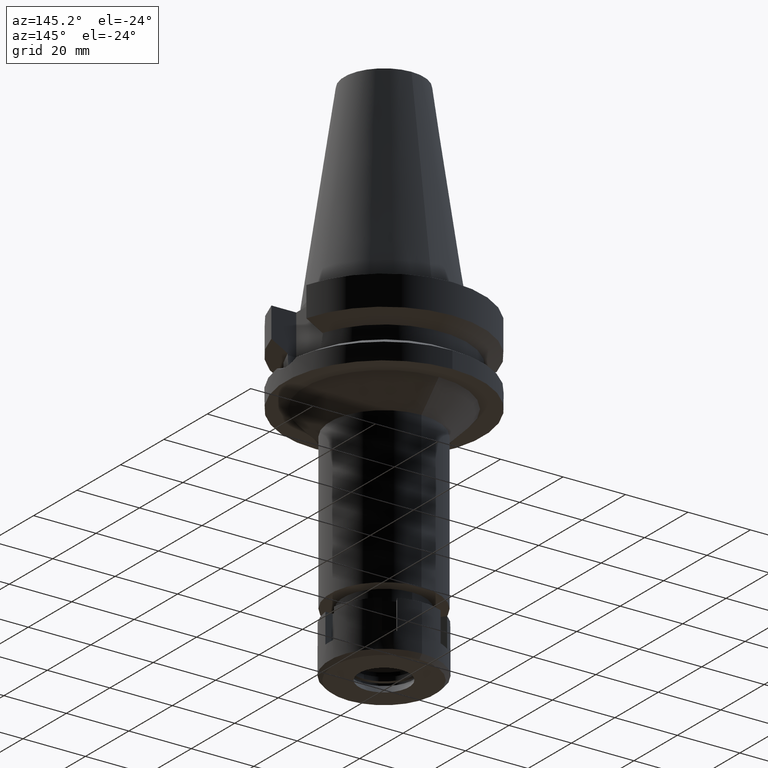
[diagram: clean part render]
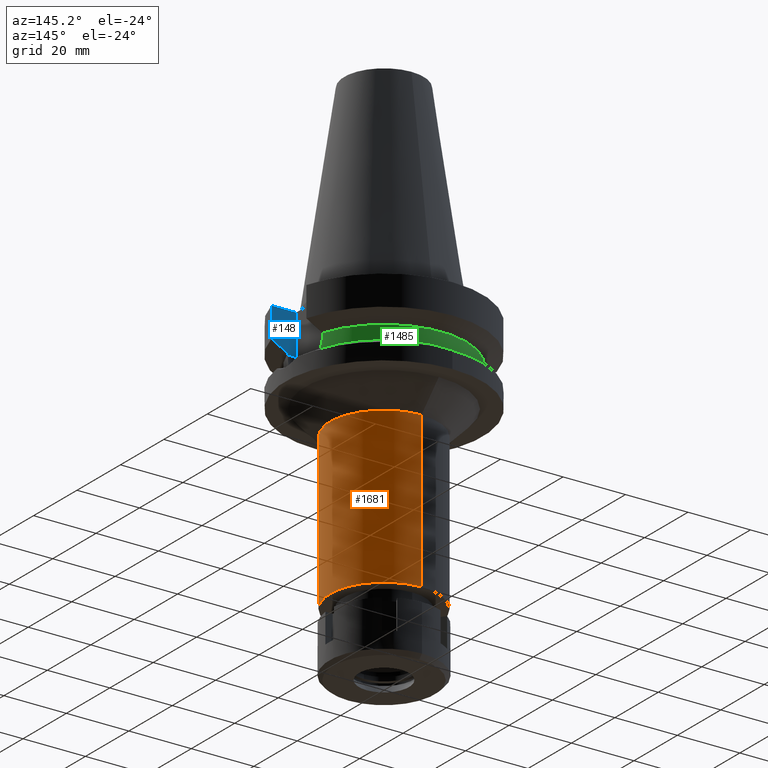
[diagram: same view with three faces highlighted in distinct colors, each labeled with its STEP entity id]
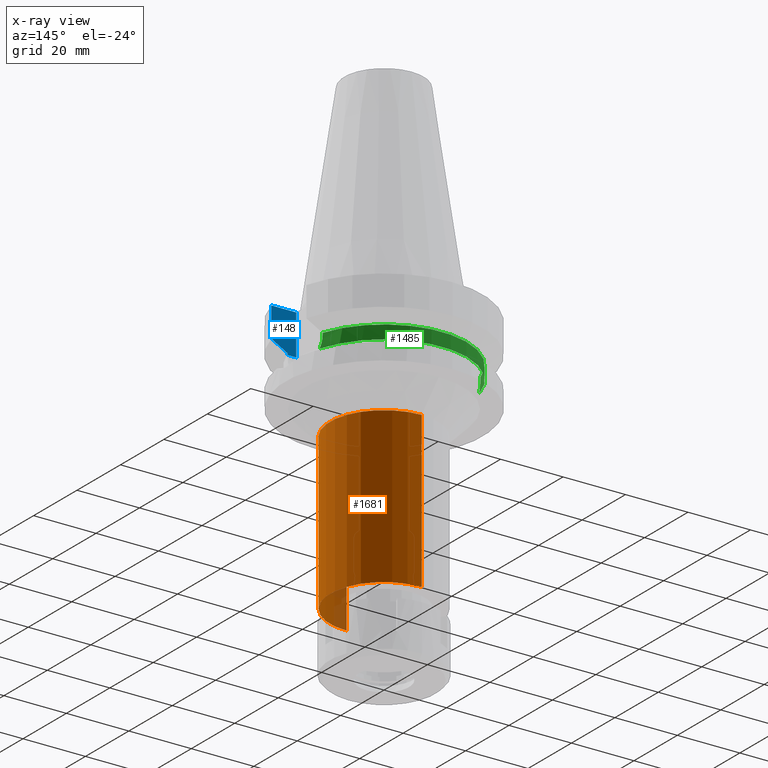
[diagram: x-ray of the same camera — body ghosted, the three highlighted faces saturated]
A machine part, auxiliary view with three faces highlighted in distinct colors.
The next image is the same camera in x-ray (body ghosted, the three faces saturated) — at least one of them is partly hidden behind the body in this view.
Their STEP definitions:

[orange] entity #1681 — the highlighted cylindrical surface (partial cylindrical patch) has radius 17.25 mm, axis along (0, 0, -1).
#175 = CARTESIAN_POINT ( 'NONE',  ( 0.0000000000000000000, 0.0000000000000000000, -35.00000000000000000 ) ) ;
#302 = ORIENTED_EDGE ( 'NONE', *, *, #1416, .T. ) ;
#401 = EDGE_LOOP ( 'NONE', ( #302, #871, #2803, #2787 ) ) ;
#487 = DIRECTION ( 'NONE',  ( 0.0000000000000000000, 0.0000000000000000000, -1.000000000000000000 ) ) ;
#592 = AXIS2_PLACEMENT_3D ( 'NONE', #2692, #2712, #2444 ) ;
#754 = AXIS2_PLACEMENT_3D ( 'NONE', #175, #2431, #3563 ) ;
#766 = CARTESIAN_POINT ( 'NONE',  ( 0.0000000000000000000, 17.25000000000000000, -35.00000000000000000 ) ) ;
#768 = VECTOR ( 'NONE', #487, 1000.000000000000000 ) ;
#871 = ORIENTED_EDGE ( 'NONE', *, *, #1526, .T. ) ;
#950 = CARTESIAN_POINT ( 'NONE',  ( 0.0000000000000000000, 2.125007125879999817E-14, 73.51999999999999602 ) ) ;
#996 = CARTESIAN_POINT ( 'NONE',  ( 0.0000000000000000000, -17.25000000000000000, -84.50000000000000000 ) ) ;
#1357 = VERTEX_POINT ( 'NONE', #3307 ) ;
#1416 = EDGE_CURVE ( 'NONE', #2966, #1357, #1810, .T. ) ;
#1526 = EDGE_CURVE ( 'NONE', #1357, #3146, #3643, .T. ) ;
#1602 = LINE ( 'NONE', #766, #768 ) ;
#1681 = ADVANCED_FACE ( 'NONE', ( #2111 ), #2936, .T. ) ;
#1810 = CIRCLE ( 'NONE', #754, 17.25000000000000000 ) ;
#2111 = FACE_OUTER_BOUND ( 'NONE', #401, .T. ) ;
#2131 = CARTESIAN_POINT ( 'NONE',  ( 0.0000000000000000000, 17.25000000000000000, -84.50000000000000000 ) ) ;
#2431 = DIRECTION ( 'NONE',  ( 0.0000000000000000000, 0.0000000000000000000, -1.000000000000000000 ) ) ;
#2444 = DIRECTION ( 'NONE',  ( 0.0000000000000000000, -1.000000000000000000, 0.0000000000000000000 ) ) ;
#2549 = CARTESIAN_POINT ( 'NONE',  ( 0.0000000000000000000, -17.25000000000000000, -35.00000000000000000 ) ) ;
#2575 = CARTESIAN_POINT ( 'NONE',  ( 0.0000000000000000000, 17.25000000000000000, -35.00000000000000000 ) ) ;
#2599 = CIRCLE ( 'NONE', #592, 17.25000000000000000 ) ;
#2672 = EDGE_CURVE ( 'NONE', #3146, #3498, #2599, .T. ) ;
#2692 = CARTESIAN_POINT ( 'NONE',  ( 0.0000000000000000000, 2.125007125879999817E-14, -84.50000000000000000 ) ) ;
#2712 = DIRECTION ( 'NONE',  ( 0.0000000000000000000, 0.0000000000000000000, 1.000000000000000000 ) ) ;
#2787 = ORIENTED_EDGE ( 'NONE', *, *, #3278, .F. ) ;
#2803 = ORIENTED_EDGE ( 'NONE', *, *, #2672, .T. ) ;
#2821 = DIRECTION ( 'NONE',  ( 0.0000000000000000000, 0.0000000000000000000, -1.000000000000000000 ) ) ;
#2936 = CYLINDRICAL_SURFACE ( 'NONE', #3188, 17.25000000000000000 ) ;
#2966 = VERTEX_POINT ( 'NONE', #2575 ) ;
#2972 = DIRECTION ( 'NONE',  ( 0.0000000000000000000, -1.000000000000000000, 0.0000000000000000000 ) ) ;
#3146 = VERTEX_POINT ( 'NONE', #996 ) ;
#3185 = VECTOR ( 'NONE', #2821, 1000.000000000000000 ) ;
#3188 = AXIS2_PLACEMENT_3D ( 'NONE', #950, #3251, #2972 ) ;
#3251 = DIRECTION ( 'NONE',  ( 0.0000000000000000000, 0.0000000000000000000, -1.000000000000000000 ) ) ;
#3278 = EDGE_CURVE ( 'NONE', #2966, #3498, #1602, .T. ) ;
#3307 = CARTESIAN_POINT ( 'NONE',  ( 0.0000000000000000000, -17.25000000000000000, -35.00000000000000000 ) ) ;
#3498 = VERTEX_POINT ( 'NONE', #2131 ) ;
#3563 = DIRECTION ( 'NONE',  ( 0.0000000000000000000, 1.000000000000000000, 0.0000000000000000000 ) ) ;
#3643 = LINE ( 'NONE', #2549, #3185 ) ;

[blue] entity #148 — the highlighted planar face has unit normal (0, -1, 0).
#2 = PLANE ( 'NONE',  #272 ) ;
#43 = VECTOR ( 'NONE', #1065, 1000.000000000000000 ) ;
#134 = EDGE_CURVE ( 'NONE', #2728, #655, #675, .T. ) ;
#148 = ADVANCED_FACE ( 'NONE', ( #319 ), #2, .F. ) ;
#212 = CARTESIAN_POINT ( 'NONE',  ( 30.45402272279000044, -8.049999999999000622, -11.56550565266999975 ) ) ;
#272 = AXIS2_PLACEMENT_3D ( 'NONE', #549, #1384, #1134 ) ;
#319 = FACE_OUTER_BOUND ( 'NONE', #2793, .T. ) ;
#490 = CARTESIAN_POINT ( 'NONE',  ( 25.24772266958000344, -8.050000000000000711, -14.94999999999999929 ) ) ;
#525 = VERTEX_POINT ( 'NONE', #3189 ) ;
#534 = CARTESIAN_POINT ( 'NONE',  ( 25.24772216419000159, -8.050001585077000144, -14.45224488722999823 ) ) ;
#549 = CARTESIAN_POINT ( 'NONE',  ( 22.50000000000000000, -8.050000000000000711, -2.000000000000000000 ) ) ;
#575 = VECTOR ( 'NONE', #750, 1000.000000000000114 ) ;
#606 = CARTESIAN_POINT ( 'NONE',  ( 25.24772266958000344, -8.050000000000000711, -14.94999999999999929 ) ) ;
#611 = ORIENTED_EDGE ( 'NONE', *, *, #3473, .T. ) ;
#625 = ORIENTED_EDGE ( 'NONE', *, *, #134, .T. ) ;
#655 = VERTEX_POINT ( 'NONE', #967 ) ;
#675 = LINE ( 'NONE', #606, #2878 ) ;
#721 = CARTESIAN_POINT ( 'NONE',  ( 22.50000000000000000, -8.050000000000000711, -2.000000000000000000 ) ) ;
#750 = DIRECTION ( 'NONE',  ( 1.015331671897014297E-06, 3.184450582670045682E-06, -0.9999999999944141349 ) ) ;
#886 = VECTOR ( 'NONE', #2156, 1000.000000000000114 ) ;
#913 = DIRECTION ( 'NONE',  ( 1.000000000000000000, 3.573249715389999860E-14, 0.0000000000000000000 ) ) ;
#917 = EDGE_CURVE ( 'NONE', #655, #3411, #2532, .T. ) ;
#959 = EDGE_CURVE ( 'NONE', #1901, #525, #1958, .T. ) ;
#967 = CARTESIAN_POINT ( 'NONE',  ( 22.50000000000000000, -8.050000000000000711, -14.94999999999999929 ) ) ;
#1039 = LINE ( 'NONE', #534, #575 ) ;
#1065 = DIRECTION ( 'NONE',  ( 0.0000000000000000000, 0.0000000000000000000, 1.000000000000000000 ) ) ;
#1087 = CARTESIAN_POINT ( 'NONE',  ( 22.50000000000000000, -8.050000000000000711, -14.94999999999999929 ) ) ;
#1116 = ORIENTED_EDGE ( 'NONE', *, *, #959, .F. ) ;
#1134 = DIRECTION ( 'NONE',  ( 0.0000000000000000000, 0.0000000000000000000, -1.000000000000000000 ) ) ;
#1282 = EDGE_CURVE ( 'NONE', #1901, #2728, #1039, .T. ) ;
#1384 = DIRECTION ( 'NONE',  ( 0.0000000000000000000, -1.000000000000000000, 0.0000000000000000000 ) ) ;
#1675 = CARTESIAN_POINT ( 'NONE',  ( 25.24772266958000344, -8.050000000000000711, -14.45225699861000024 ) ) ;
#1764 = VECTOR ( 'NONE', #913, 1000.000000000000000 ) ;
#1771 = ORIENTED_EDGE ( 'NONE', *, *, #1282, .T. ) ;
#1899 = CARTESIAN_POINT ( 'NONE',  ( 28.57294946106893718, -8.050008284185420138, -12.61547993394060718 ) ) ;
#1901 = VERTEX_POINT ( 'NONE', #1675 ) ;
#1958 = B_SPLINE_CURVE_WITH_KNOTS ( 'NONE', 3,
 ( #2179, #3312, #1899, #212 ),
 .UNSPECIFIED., .F., .F.,
 ( 4, 4 ),
 ( 0.0000000000000000000, 1.000000000000000000 ),
 .UNSPECIFIED. ) ;
#2156 = DIRECTION ( 'NONE',  ( -1.145559200540999260E-07, -4.333768744435997535E-07, -0.9999999999998995248 ) ) ;
#2179 = CARTESIAN_POINT ( 'NONE',  ( 25.24772266958000344, -8.050000000000000711, -14.45225699861000024 ) ) ;
#2320 = LINE ( 'NONE', #3451, #1764 ) ;
#2417 = CARTESIAN_POINT ( 'NONE',  ( 30.45402272279000044, -8.050000000000000711, -2.000000000000000000 ) ) ;
#2441 = ORIENTED_EDGE ( 'NONE', *, *, #2642, .T. ) ;
#2450 = CARTESIAN_POINT ( 'NONE',  ( 30.45402272279000044, -8.050000000000000711, -2.000000000000000000 ) ) ;
#2532 = LINE ( 'NONE', #1087, #43 ) ;
#2548 = DIRECTION ( 'NONE',  ( -1.000000000000000000, -1.551559937893000172E-14, 0.0000000000000000000 ) ) ;
#2642 = EDGE_CURVE ( 'NONE', #3411, #3390, #2320, .T. ) ;
#2728 = VERTEX_POINT ( 'NONE', #490 ) ;
#2793 = EDGE_LOOP ( 'NONE', ( #625, #2981, #2441, #611, #1116, #1771 ) ) ;
#2878 = VECTOR ( 'NONE', #2548, 1000.000000000000000 ) ;
#2981 = ORIENTED_EDGE ( 'NONE', *, *, #917, .T. ) ;
#3189 = CARTESIAN_POINT ( 'NONE',  ( 30.45402272279000044, -8.049999999999000622, -11.56550565266999975 ) ) ;
#3312 = CARTESIAN_POINT ( 'NONE',  ( 26.83757724558985558, -8.050003173575573712, -13.57772968370331235 ) ) ;
#3390 = VERTEX_POINT ( 'NONE', #2450 ) ;
#3411 = VERTEX_POINT ( 'NONE', #721 ) ;
#3451 = CARTESIAN_POINT ( 'NONE',  ( 22.50000000000000000, -8.050000000000000711, -2.000000000000000000 ) ) ;
#3473 = EDGE_CURVE ( 'NONE', #3390, #525, #3601, .T. ) ;
#3601 = LINE ( 'NONE', #2417, #886 ) ;

[green] entity #1485 — the highlighted cylindrical surface (partial cylindrical patch) has radius 26.5 mm, axis along (0, 0, -1).
#18 = CARTESIAN_POINT ( 'NONE',  ( -25.31206084004277912, 7.845614529401188975, -16.75329855850928951 ) ) ;
#53 = VECTOR ( 'NONE', #1443, 1000.000000000000227 ) ;
#96 = CARTESIAN_POINT ( 'NONE',  ( -25.28050147970205330, 7.946982733727907977, -16.24437200639999901 ) ) ;
#144 = CARTESIAN_POINT ( 'NONE',  ( 25.53175183775000079, 7.097862220092999941, -18.74774300138999905 ) ) ;
#246 = EDGE_CURVE ( 'NONE', #1025, #2963, #2813, .T. ) ;
#292 = VERTEX_POINT ( 'NONE', #1560 ) ;
#320 = LINE ( 'NONE', #2579, #53 ) ;
#389 = CARTESIAN_POINT ( 'NONE',  ( 25.24772266958000344, 8.050000000000000711, -14.94999999999999929 ) ) ;
#406 = CARTESIAN_POINT ( 'NONE',  ( 25.35408314255054663, 7.708964442631086378, -17.26963666352914117 ) ) ;
#418 = EDGE_LOOP ( 'NONE', ( #1733, #3401, #2493, #3126, #3326, #2606 ) ) ;
#427 = DIRECTION ( 'NONE',  ( 0.0000000000000000000, 1.000000000000000000, 0.0000000000000000000 ) ) ;
#457 = CARTESIAN_POINT ( 'NONE',  ( 25.37569567372544910, 7.637836187999782922, -17.49781209657168191 ) ) ;
#509 = AXIS2_PLACEMENT_3D ( 'NONE', #1030, #2968, #427 ) ;
#532 = CIRCLE ( 'NONE', #1580, 26.50000000000000711 ) ;
#550 = CARTESIAN_POINT ( 'NONE',  ( 0.0000000000000000000, 2.125007125879999817E-14, 73.51999999999999602 ) ) ;
#622 = CYLINDRICAL_SURFACE ( 'NONE', #1157, 26.50000000000000000 ) ;
#671 = CARTESIAN_POINT ( 'NONE',  ( 25.24772266958000344, 8.049999999999997158, -15.58981081119148193 ) ) ;
#702 = CARTESIAN_POINT ( 'NONE',  ( 25.24772413156000184, 8.049995414687000306, -14.45229203637999937 ) ) ;
#704 = CARTESIAN_POINT ( 'NONE',  ( 25.48480653792046624, 7.266729367422243513, -18.43213561436577308 ) ) ;
#722 = EDGE_CURVE ( 'NONE', #1025, #292, #3553, .T. ) ;
#736 = CARTESIAN_POINT ( 'NONE',  ( 25.34384339545047737, 7.742469616379023201, -17.15619314850085431 ) ) ;
#744 = LINE ( 'NONE', #2686, #1471 ) ;
#909 = DIRECTION ( 'NONE',  ( 0.0000000000000000000, 0.0000000000000000000, -1.000000000000000000 ) ) ;
#952 = CARTESIAN_POINT ( 'NONE',  ( 0.0000000000000000000, 1.065333950388000029E-14, -14.45225699861000024 ) ) ;
#1025 = VERTEX_POINT ( 'NONE', #1138 ) ;
#1030 = CARTESIAN_POINT ( 'NONE',  ( 0.0000000000000000000, 0.0000000000000000000, -18.74774300138999905 ) ) ;
#1033 = CARTESIAN_POINT ( 'NONE',  ( -25.53175183775000079, 7.097862220092999941, -18.74774300138999905 ) ) ;
#1138 = CARTESIAN_POINT ( 'NONE',  ( 25.53175183775000079, 7.097862220092999941, -18.74774300138999905 ) ) ;
#1144 = CARTESIAN_POINT ( 'NONE',  ( -25.31652402624243337, 7.831177078179816675, -16.81429685340951963 ) ) ;
#1147 = FACE_OUTER_BOUND ( 'NONE', #418, .T. ) ;
#1157 = AXIS2_PLACEMENT_3D ( 'NONE', #550, #909, #2522 ) ;
#1270 = CARTESIAN_POINT ( 'NONE',  ( 25.33288843118665312, 7.778112047386424699, -17.02510900864709598 ) ) ;
#1352 = VERTEX_POINT ( 'NONE', #3341 ) ;
#1422 = CARTESIAN_POINT ( 'NONE',  ( -25.29454954118293486, 7.902007388341837135, -16.48871296864345126 ) ) ;
#1439 = CARTESIAN_POINT ( 'NONE',  ( -25.53175183775000079, 7.097862220092999941, -18.74774300138999905 ) ) ;
#1443 = DIRECTION ( 'NONE',  ( 2.937431449991140861E-06, -9.212857328731440611E-06, 0.9999999999532472872 ) ) ;
#1447 = DIRECTION ( 'NONE',  ( 0.0000000000000000000, 0.0000000000000000000, -1.000000000000000000 ) ) ;
#1467 = DIRECTION ( 'NONE',  ( -0.9527442516822307583, 0.3037735849057093818, 0.0000000000000000000 ) ) ;
#1471 = VECTOR ( 'NONE', #2148, 1000.000000000000000 ) ;
#1485 = ADVANCED_FACE ( 'NONE', ( #1147 ), #622, .T. ) ;
#1495 = CARTESIAN_POINT ( 'NONE',  ( -25.27269700110156592, 7.971767412704498845, -16.08147680839852356 ) ) ;
#1531 = CARTESIAN_POINT ( 'NONE',  ( 25.32415423298265722, 7.806459850231466824, -16.91522840168126152 ) ) ;
#1560 = CARTESIAN_POINT ( 'NONE',  ( 25.24772266958000344, 8.050000000000000711, -14.94999999999999929 ) ) ;
#1580 = AXIS2_PLACEMENT_3D ( 'NONE', #952, #1447, #1467 ) ;
#1585 = CARTESIAN_POINT ( 'NONE',  ( -25.36818832151804770, 7.663695285312788208, -17.48840541837621743 ) ) ;
#1588 = EDGE_CURVE ( 'NONE', #292, #3333, #320, .T. ) ;
#1733 = ORIENTED_EDGE ( 'NONE', *, *, #2571, .T. ) ;
#1778 = CARTESIAN_POINT ( 'NONE',  ( -25.25396625246039406, 8.030896711162544221, -15.59378553528499012 ) ) ;
#1857 = CARTESIAN_POINT ( 'NONE',  ( 25.32546474064105979, 7.802209548897429237, -16.93201787082077203 ) ) ;
#2073 = CARTESIAN_POINT ( 'NONE',  ( 25.39161474380841099, 7.584925632688388042, -17.65165132602217213 ) ) ;
#2148 = DIRECTION ( 'NONE',  ( -1.015463540639011759E-06, -3.184864164185038810E-06, -0.9999999999944126916 ) ) ;
#2374 = B_SPLINE_CURVE_WITH_KNOTS ( 'NONE', 3,
 ( #3463, #3214, #1778, #1495, #96, #1422, #2560, #18, #1144, #3137, #2857, #1585, #2702, #1033 ),
 .UNSPECIFIED., .F., .F.,
 ( 4, 2, 2, 1, 1, 2, 2, 4 ),
 ( 0.0000000000000000000, 0.2499999999999944489, 0.3749999999999909517, 0.4374999999999905076, 0.4687499999999915623, 0.4843749999999910072, 0.4999999999999904521, 1.000000000000000000 ),
 .UNSPECIFIED. ) ;
#2420 = CARTESIAN_POINT ( 'NONE',  ( 25.27267991477270215, 7.973333693868347005, -16.24500092433180498 ) ) ;
#2493 = ORIENTED_EDGE ( 'NONE', *, *, #722, .F. ) ;
#2522 = DIRECTION ( 'NONE',  ( 0.0000000000000000000, -1.000000000000000000, 0.0000000000000000000 ) ) ;
#2560 = CARTESIAN_POINT ( 'NONE',  ( -25.30215890781840926, 7.877570599500793413, -16.61088255776599709 ) ) ;
#2571 = EDGE_CURVE ( 'NONE', #1352, #3333, #532, .T. ) ;
#2579 = CARTESIAN_POINT ( 'NONE',  ( 25.24772266958000344, 8.050000000000000711, -14.94999999999999929 ) ) ;
#2606 = ORIENTED_EDGE ( 'NONE', *, *, #3149, .F. ) ;
#2686 = CARTESIAN_POINT ( 'NONE',  ( -25.24772216412999981, 8.050001585282000605, -14.45224488565999899 ) ) ;
#2696 = CARTESIAN_POINT ( 'NONE',  ( 25.32840589093493122, 7.792665650289850809, -16.96921537928767165 ) ) ;
#2702 = CARTESIAN_POINT ( 'NONE',  ( -25.43789037938648789, 7.435491690473122084, -18.11672414062482162 ) ) ;
#2813 = CIRCLE ( 'NONE', #509, 26.50000000000000000 ) ;
#2857 = CARTESIAN_POINT ( 'NONE',  ( -25.32122245610177913, 7.815962707354302985, -16.87706809356129156 ) ) ;
#2963 = VERTEX_POINT ( 'NONE', #1439 ) ;
#2968 = DIRECTION ( 'NONE',  ( 0.0000000000000000000, 0.0000000000000000000, 1.000000000000000000 ) ) ;
#3094 = EDGE_CURVE ( 'NONE', #3328, #2963, #2374, .T. ) ;
#3126 = ORIENTED_EDGE ( 'NONE', *, *, #246, .T. ) ;
#3137 = CARTESIAN_POINT ( 'NONE',  ( -25.31954826170013106, 7.821386849068008296, -16.85495274079638151 ) ) ;
#3149 = EDGE_CURVE ( 'NONE', #1352, #3328, #744, .T. ) ;
#3214 = CARTESIAN_POINT ( 'NONE',  ( -25.24772266958000699, 8.050000000000018474, -15.27000344021189804 ) ) ;
#3222 = CARTESIAN_POINT ( 'NONE',  ( 25.44390410195637742, 7.408324269918076688, -18.11690676764972352 ) ) ;
#3326 = ORIENTED_EDGE ( 'NONE', *, *, #3094, .F. ) ;
#3328 = VERTEX_POINT ( 'NONE', #3580 ) ;
#3333 = VERTEX_POINT ( 'NONE', #702 ) ;
#3341 = CARTESIAN_POINT ( 'NONE',  ( -25.24772216412999981, 8.050001585282000605, -14.45224488565999899 ) ) ;
#3401 = ORIENTED_EDGE ( 'NONE', *, *, #1588, .F. ) ;
#3463 = CARTESIAN_POINT ( 'NONE',  ( -25.24772266958000344, 8.050000000000000711, -14.94999999999999929 ) ) ;
#3553 = B_SPLINE_CURVE_WITH_KNOTS ( 'NONE', 3,
 ( #144, #704, #3222, #2073, #457, #406, #736, #1270, #2696, #1857, #1531, #2420, #671, #389 ),
 .UNSPECIFIED., .F., .F.,
 ( 4, 2, 2, 1, 1, 2, 2, 4 ),
 ( 0.0000000000000000000, 0.2500000000000011657, 0.3750000000000028311, 0.4375000000000037748, 0.4687500000000027756, 0.4843750000000024425, 0.5000000000000019984, 1.000000000000000000 ),
 .UNSPECIFIED. ) ;
#3580 = CARTESIAN_POINT ( 'NONE',  ( -25.24772266958000344, 8.050000000000000711, -14.94999999999999929 ) ) ;